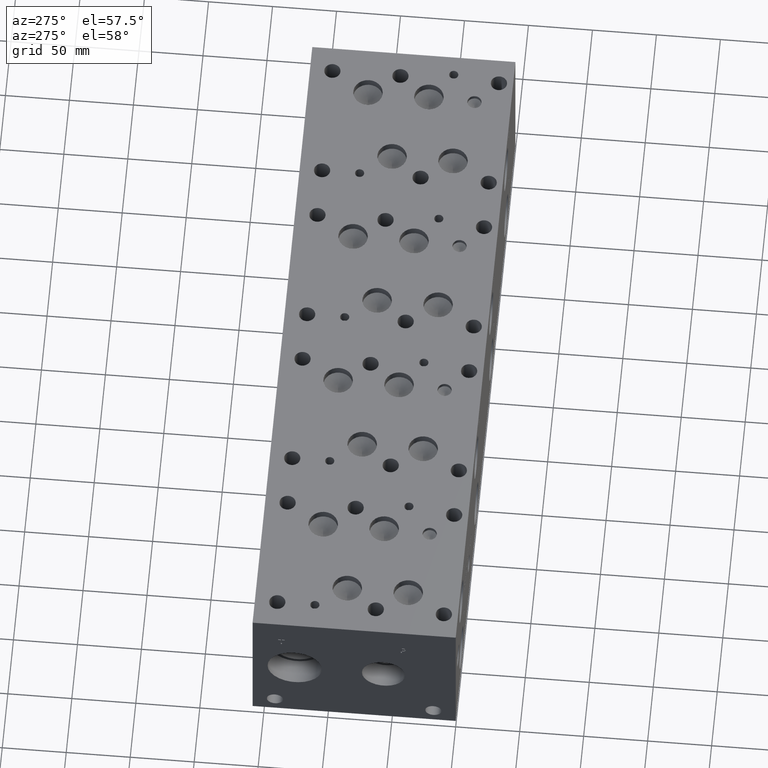
[diagram: clean part render]
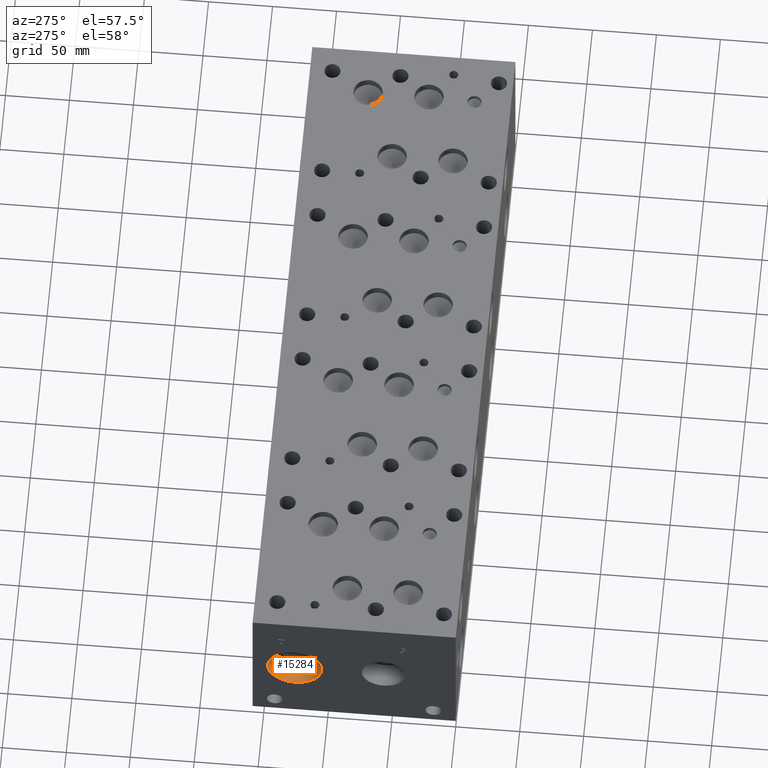
[diagram: same view with one face highlighted and labeled with its STEP entity id]
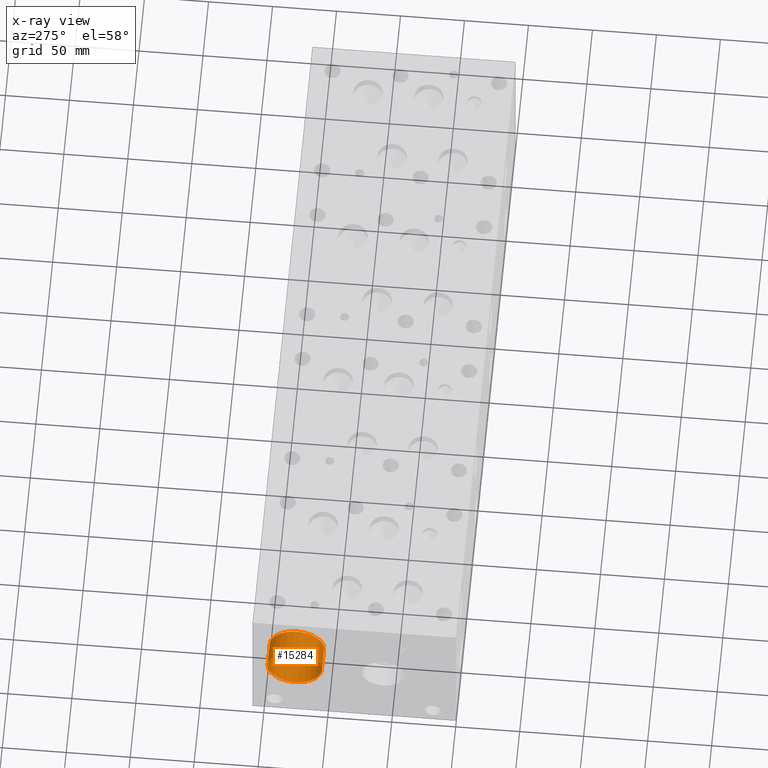
[diagram: x-ray of the same camera — body ghosted, the highlighted face saturated]
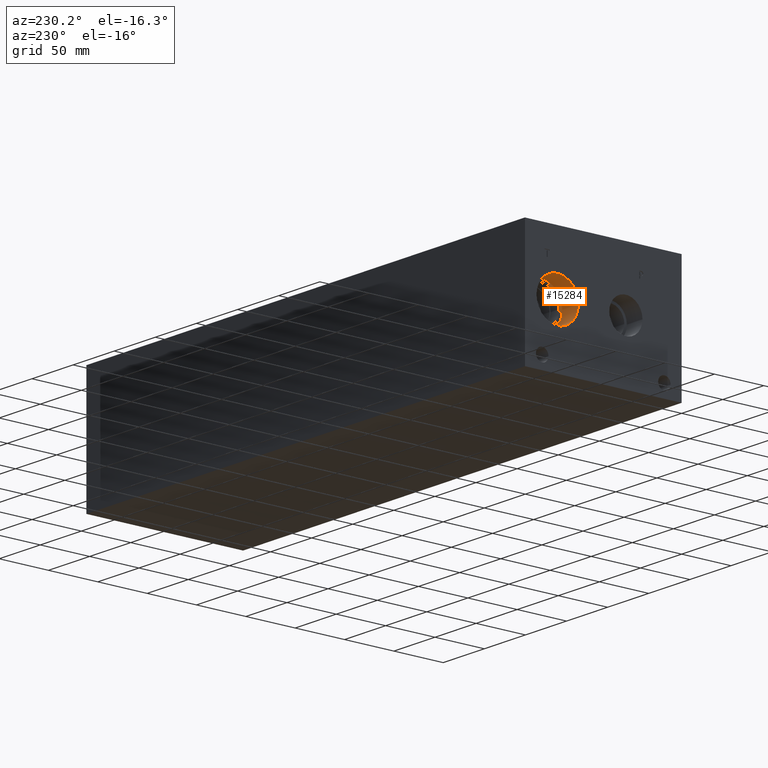
[diagram: same view with one face highlighted and labeled with its STEP entity id]
A machine part, auxiliary view. The second image highlights one B-rep face of the part: STEP entity #15284.
The next image is the same camera in x-ray: the body ghosted, the highlighted face saturated — about 0% of this face is hidden behind the body in this view.
A second angle (auxiliary view) of the same face is appended — the face is thin or edge-on in the first view.
In plain terms, the highlighted cylindrical surface (bore or boss wall) has radius 21.2344 mm, axis along (-1, 0, 0).
Its self-contained STEP definition (entity closure, byte-faithful):
#37=CYLINDRICAL_SURFACE('',#16029,21.2344);
#406=CIRCLE('',#15859,21.2344);
#407=CIRCLE('',#15860,21.2344);
#480=CIRCLE('',#16026,21.2344);
#481=CIRCLE('',#16027,21.2344);
#1925=FACE_OUTER_BOUND('',#2811,.T.);
#2811=EDGE_LOOP('',(#12709,#12710,#12711,#12712,#12713,#12714));
#4296=LINE('',#25653,#5659);
#5659=VECTOR('',#18828,21.2344);
#6777=VERTEX_POINT('',#24970);
#6778=VERTEX_POINT('',#24971);
#6940=VERTEX_POINT('',#25646);
#6941=VERTEX_POINT('',#25647);
#8732=EDGE_CURVE('',#6777,#6778,#406,.T.);
#8733=EDGE_CURVE('',#6778,#6777,#407,.T.);
#8974=EDGE_CURVE('',#6940,#6941,#480,.T.);
#8975=EDGE_CURVE('',#6941,#6940,#481,.T.);
#8977=EDGE_CURVE('',#6778,#6941,#4296,.T.);
#12709=ORIENTED_EDGE('',*,*,#8732,.F.);
#12710=ORIENTED_EDGE('',*,*,#8733,.F.);
#12711=ORIENTED_EDGE('',*,*,#8977,.T.);
#12712=ORIENTED_EDGE('',*,*,#8974,.F.);
#12713=ORIENTED_EDGE('',*,*,#8975,.F.);
#12714=ORIENTED_EDGE('',*,*,#8977,.F.);
#15284=ADVANCED_FACE('',(#1925),#37,.F.);
#15859=AXIS2_PLACEMENT_3D('',#24972,#18340,#18341);
#15860=AXIS2_PLACEMENT_3D('',#24973,#18342,#18343);
#16026=AXIS2_PLACEMENT_3D('',#25648,#18820,#18821);
#16027=AXIS2_PLACEMENT_3D('',#25649,#18822,#18823);
#16029=AXIS2_PLACEMENT_3D('',#25652,#18826,#18827);
#18340=DIRECTION('center_axis',(1.,0.,0.));
#18341=DIRECTION('ref_axis',(0.,1.,0.));
#18342=DIRECTION('center_axis',(1.,0.,0.));
#18343=DIRECTION('ref_axis',(0.,1.,0.));
#18820=DIRECTION('center_axis',(-1.,0.,0.));
#18821=DIRECTION('ref_axis',(0.,1.,0.));
#18822=DIRECTION('center_axis',(-1.,0.,0.));
#18823=DIRECTION('ref_axis',(0.,1.,0.));
#18826=DIRECTION('center_axis',(-1.,0.,0.));
#18827=DIRECTION('ref_axis',(0.,1.,0.));
#18828=DIRECTION('',(1.,0.,0.));
#24970=CARTESIAN_POINT('',(0.,147.066,60.325));
#24971=CARTESIAN_POINT('',(0.,104.5972,60.325));
#24972=CARTESIAN_POINT('Origin',(0.,125.8316,60.325));
#24973=CARTESIAN_POINT('Origin',(0.,125.8316,60.325));
#25646=CARTESIAN_POINT('',(19.5072,147.066,60.325));
#25647=CARTESIAN_POINT('',(19.5072,104.5972,60.325));
#25648=CARTESIAN_POINT('Origin',(19.5072,125.8316,60.325));
#25649=CARTESIAN_POINT('Origin',(19.5072,125.8316,60.325));
#25652=CARTESIAN_POINT('Origin',(9.7536,125.8316,60.325));
#25653=CARTESIAN_POINT('',(9.7536,104.5972,60.325));